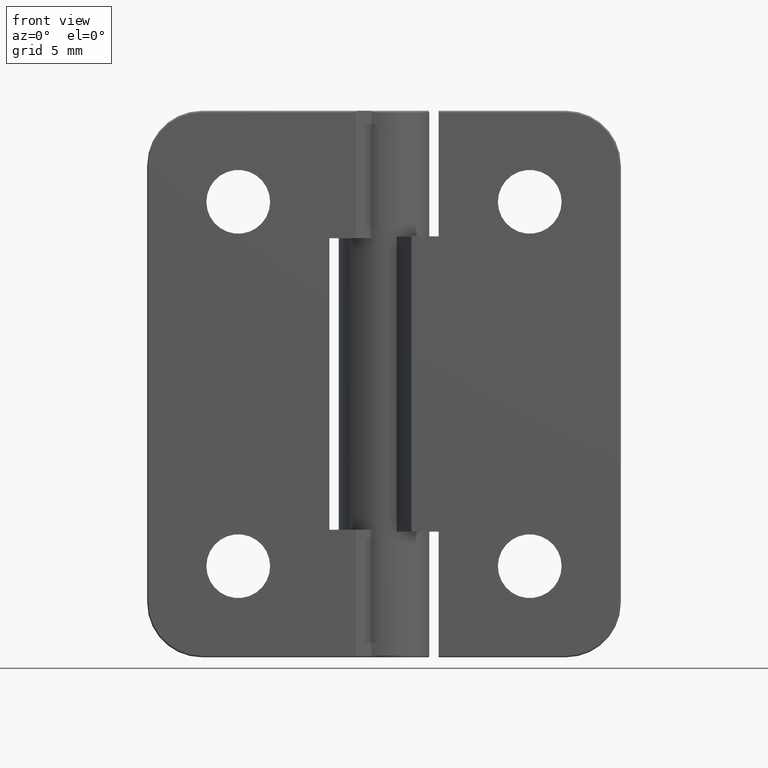
[diagram: clean part render]
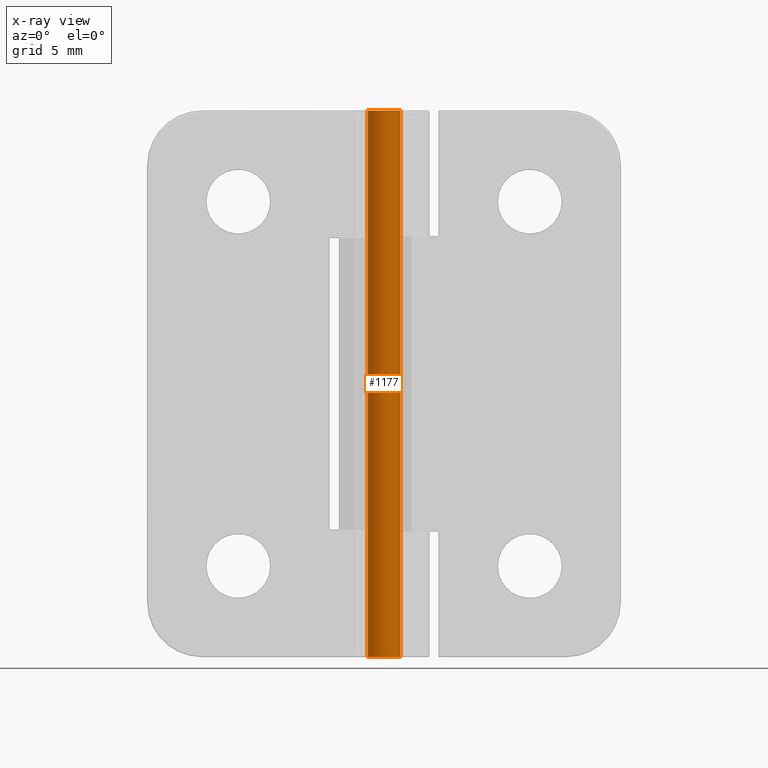
[diagram: x-ray — body ghosted, one internal face saturated and labeled with its STEP entity id]
A machine part, front view, then the same camera in x-ray: the body is ghosted and one INTERNAL B-rep face — a face not visible from any outside direction — is saturated and labeled: STEP entity #1177.
In plain terms, the highlighted cylindrical surface (bore or boss wall) has radius 0.9 mm, axis along (0, 0, 1).
Its self-contained STEP definition (entity closure, byte-faithful):
#91=CYLINDRICAL_SURFACE('',#1338,0.9);
#117=FACE_BOUND('',#369,.T.);
#197=CIRCLE('',#1337,0.9);
#198=CIRCLE('',#1339,0.9);
#270=FACE_OUTER_BOUND('',#368,.T.);
#368=EDGE_LOOP('',(#1081));
#369=EDGE_LOOP('',(#1082));
#611=VERTEX_POINT('',#2116);
#612=VERTEX_POINT('',#2119);
#768=EDGE_CURVE('',#611,#611,#197,.T.);
#769=EDGE_CURVE('',#612,#612,#198,.T.);
#1081=ORIENTED_EDGE('',*,*,#768,.F.);
#1082=ORIENTED_EDGE('',*,*,#769,.F.);
#1177=ADVANCED_FACE('',(#270,#117),#91,.T.);
#1337=AXIS2_PLACEMENT_3D('',#2117,#1725,#1726);
#1338=AXIS2_PLACEMENT_3D('',#2118,#1727,#1728);
#1339=AXIS2_PLACEMENT_3D('',#2120,#1729,#1730);
#1725=DIRECTION('center_axis',(0.,0.,-1.));
#1726=DIRECTION('ref_axis',(-1.,0.,0.));
#1727=DIRECTION('center_axis',(0.,0.,1.));
#1728=DIRECTION('ref_axis',(-1.,0.,0.));
#1729=DIRECTION('center_axis',(0.,0.,1.));
#1730=DIRECTION('ref_axis',(-1.,0.,0.));
#2116=CARTESIAN_POINT('',(0.9,1.10218211923262E-16,-15.));
#2117=CARTESIAN_POINT('Origin',(0.,0.,-15.));
#2118=CARTESIAN_POINT('Origin',(0.,0.,0.));
#2119=CARTESIAN_POINT('',(0.9,1.10218211923262E-16,15.));
#2120=CARTESIAN_POINT('Origin',(0.,0.,15.));